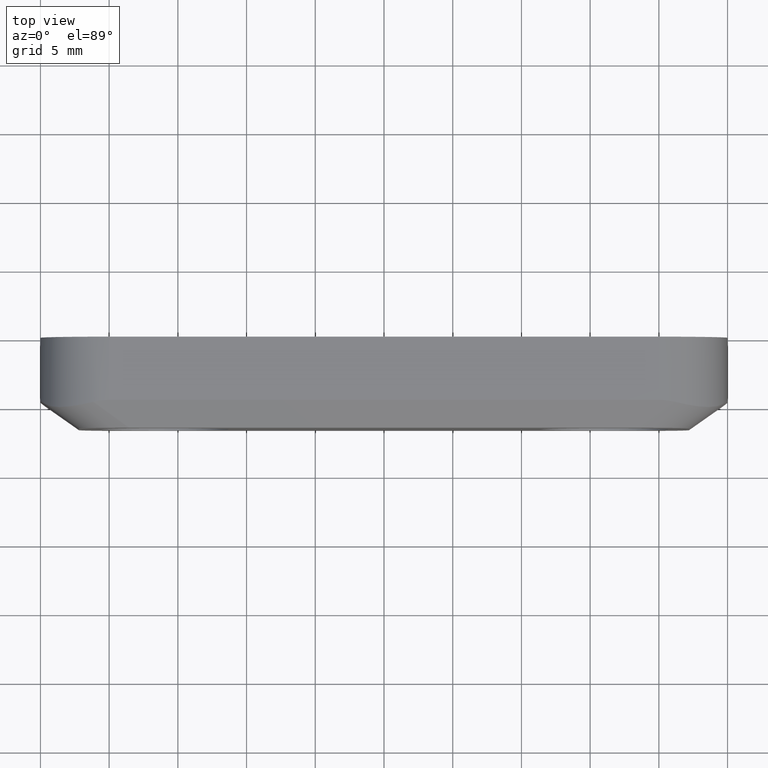
[diagram: clean part render]
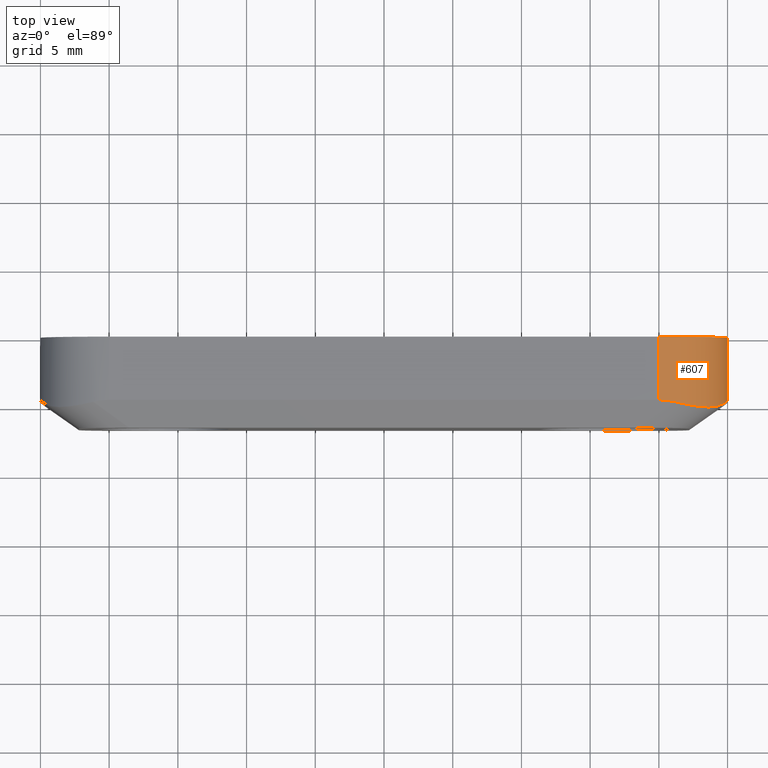
[diagram: same view with one face highlighted and labeled with its STEP entity id]
A machine part, top view. The second image highlights one B-rep face of the part: STEP entity #607.
In plain terms, the highlighted cylindrical surface (partial cylindrical patch) has radius 5 mm, axis along (0, 1, 0).
Its self-contained STEP definition (entity closure, byte-faithful):
#31 = DIRECTION ( 'NONE',  ( 0.0000000000000000000, 0.0000000000000000000, 1.000000000000000000 ) ) ;
#34 = VERTEX_POINT ( 'NONE', #223 ) ;
#37 = DIRECTION ( 'NONE',  ( 0.0000000000000000000, 1.000000000000000000, 0.0000000000000000000 ) ) ;
#49 = CARTESIAN_POINT ( 'NONE',  ( 23.14542361836299000, -5.080936582070707500, 7.392034514318929400 ) ) ;
#57 = CARTESIAN_POINT ( 'NONE',  ( 24.99999999998775000, -4.599999999999999600, 3.500000000001390000 ) ) ;
#62 = B_SPLINE_CURVE_WITH_KNOTS ( 'NONE', 3,
 ( #80, #947, #870, #942, #472, #641, #183, #49, #594, #268, #794, #562, #175, #504 ),
 .UNSPECIFIED., .F., .F.,
 ( 4, 2, 2, 2, 2, 2, 4 ),
 ( 0.0000000000000000000, 0.001244285988281708300, 0.001866428982422559400, 0.002488571976563410600, 0.003110714970704261400, 0.003732857964845113100, 0.004977143953126822100 ),
 .UNSPECIFIED. ) ;
#80 = CARTESIAN_POINT ( 'NONE',  ( 24.67731884921190000, -4.830486536268180600, 5.267113007900960900 ) ) ;
#142 = LINE ( 'NONE', #559, #347 ) ;
#153 = ORIENTED_EDGE ( 'NONE', *, *, #549, .F. ) ;
#162 = EDGE_CURVE ( 'NONE', #34, #299, #142, .T. ) ;
#175 = CARTESIAN_POINT ( 'NONE',  ( 21.55003786816701300, -4.829220552925865400, 8.270779447074293200 ) ) ;
#181 = CARTESIAN_POINT ( 'NONE',  ( 19.99999999998770100, -1000.000000000000000, 3.500000000000115000 ) ) ;
#183 = CARTESIAN_POINT ( 'NONE',  ( 23.45205393927591000, -5.094829759384635000, 7.122836733821660700 ) ) ;
#201 = VERTEX_POINT ( 'NONE', #513 ) ;
#214 = ORIENTED_EDGE ( 'NONE', *, *, #322, .F. ) ;
#223 = CARTESIAN_POINT ( 'NONE',  ( 24.99999999998775000, 0.0000000000000000000, 3.500000000001395300 ) ) ;
#231 = ORIENTED_EDGE ( 'NONE', *, *, #965, .F. ) ;
#253 = ORIENTED_EDGE ( 'NONE', *, *, #916, .F. ) ;
#268 = CARTESIAN_POINT ( 'NONE',  ( 22.64588629194556200, -5.028169182108968000, 7.747491752722281100 ) ) ;
#299 = VERTEX_POINT ( 'NONE', #400 ) ;
#312 =( BOUNDED_CURVE ( )  B_SPLINE_CURVE ( 3, ( #645, #348, #815, #974 ),
 .UNSPECIFIED., .F., .F. ) 
 B_SPLINE_CURVE_WITH_KNOTS ( ( 4, 4 ),
 ( 6.049602025277226700, 6.283185307179586200 ),
 .UNSPECIFIED. ) 
 CURVE ( )  GEOMETRIC_REPRESENTATION_ITEM ( )  RATIONAL_B_SPLINE_CURVE ( ( 1.000000000000000000, 0.9954584034475587600, 0.9954584034475587600, 1.000000000000000000 ) ) 
 REPRESENTATION_ITEM ( '' )  );
#322 = EDGE_CURVE ( 'NONE', #692, #570, #312, .T. ) ;
#347 = VECTOR ( 'NONE', #665, 1000.000000000000000 ) ;
#348 = CARTESIAN_POINT ( 'NONE',  ( 20.77772811688655000, -4.645467766029583800, 8.454532233970596200 ) ) ;
#386 = ORIENTED_EDGE ( 'NONE', *, *, #162, .F. ) ;
#394 = EDGE_LOOP ( 'NONE', ( #706, #214, #253, #153, #386, #231 ) ) ;
#400 = CARTESIAN_POINT ( 'NONE',  ( 24.99999999998775000, -4.599999999999999600, 3.500000000001390000 ) ) ;
#431 = CARTESIAN_POINT ( 'NONE',  ( 19.99999999998770100, 0.0000000000000000000, 3.500000000000115000 ) ) ;
#437 = CARTESIAN_POINT ( 'NONE',  ( 24.67731884921190000, -4.830486536268180600, 5.267113007900960900 ) ) ;
#441 = AXIS2_PLACEMENT_3D ( 'NONE', #431, #823, #31 ) ;
#472 = CARTESIAN_POINT ( 'NONE',  ( 23.87205244154782600, -5.081533563728908300, 6.670148654871363500 ) ) ;
#489 = CARTESIAN_POINT ( 'NONE',  ( 24.99999999998755100, -4.600000000000089400, 4.105342070641560400 ) ) ;
#504 = CARTESIAN_POINT ( 'NONE',  ( 21.15732486817434900, -4.735783809340249600, 8.364216190659910000 ) ) ;
#513 = CARTESIAN_POINT ( 'NONE',  ( 24.67731884921190000, -4.830486536268180600, 5.267113007900960900 ) ) ;
#549 = EDGE_CURVE ( 'NONE', #299, #201, #608, .T. ) ;
#551 = CARTESIAN_POINT ( 'NONE',  ( 19.99999999998770100, -4.599999999999999600, 8.500000000000110100 ) ) ;
#559 = CARTESIAN_POINT ( 'NONE',  ( 24.99999999998775000, -1000.000000000000000, 3.500000000001395300 ) ) ;
#561 = VECTOR ( 'NONE', #629, 1000.000000000000000 ) ;
#562 = CARTESIAN_POINT ( 'NONE',  ( 21.92648594498845300, -4.910103916622388100, 8.131793527950712500 ) ) ;
#570 = VERTEX_POINT ( 'NONE', #551 ) ;
#594 = CARTESIAN_POINT ( 'NONE',  ( 22.98422797473792300, -5.067433449815443000, 7.516999359488688800 ) ) ;
#607 = ADVANCED_FACE ( 'NONE', ( #671 ), #802, .T. ) ;
#608 =( BOUNDED_CURVE ( )  B_SPLINE_CURVE ( 3, ( #57, #489, #804, #437 ),
 .UNSPECIFIED., .F., .F. ) 
 B_SPLINE_CURVE_WITH_KNOTS ( ( 4, 4 ),
 ( -8.881784197001252300E-016, 0.3612273082640132800 ),
 .UNSPECIFIED. ) 
 CURVE ( )  GEOMETRIC_REPRESENTATION_ITEM ( )  RATIONAL_B_SPLINE_CURVE ( ( 1.000000000000000000, 0.9891557635425618500, 0.9891557635425618500, 1.000000000000000000 ) ) 
 REPRESENTATION_ITEM ( '' )  );
#629 = DIRECTION ( 'NONE',  ( 0.0000000000000000000, 1.000000000000000000, 0.0000000000000000000 ) ) ;
#641 = CARTESIAN_POINT ( 'NONE',  ( 23.59748993876162600, -5.095228166796665900, 6.978605862209009000 ) ) ;
#645 = CARTESIAN_POINT ( 'NONE',  ( 21.15732486817434900, -4.735783809340249600, 8.364216190659910000 ) ) ;
#665 = DIRECTION ( 'NONE',  ( -0.0000000000000000000, -1.000000000000000000, -0.0000000000000000000 ) ) ;
#671 = FACE_OUTER_BOUND ( 'NONE', #394, .T. ) ;
#692 = VERTEX_POINT ( 'NONE', #962 ) ;
#706 = ORIENTED_EDGE ( 'NONE', *, *, #741, .F. ) ;
#718 = CARTESIAN_POINT ( 'NONE',  ( 19.99999999998770100, -1000.000000000000000, 8.500000000000110100 ) ) ;
#741 = EDGE_CURVE ( 'NONE', #570, #838, #769, .T. ) ;
#762 = AXIS2_PLACEMENT_3D ( 'NONE', #181, #37, #975 ) ;
#769 = LINE ( 'NONE', #718, #561 ) ;
#794 = CARTESIAN_POINT ( 'NONE',  ( 22.46805116632663500, -5.002214370888922600, 7.853152683492348600 ) ) ;
#802 = CYLINDRICAL_SURFACE ( 'NONE', #762, 5.000000000000000000 ) ;
#804 = CARTESIAN_POINT ( 'NONE',  ( 24.89126041866343900, -4.677671129517198900, 4.700837432454216400 ) ) ;
#805 = CIRCLE ( 'NONE', #441, 5.000000000000000000 ) ;
#815 = CARTESIAN_POINT ( 'NONE',  ( 20.39019313327883200, -4.600000000000064500, 8.500000000000115500 ) ) ;
#823 = DIRECTION ( 'NONE',  ( 0.0000000000000000000, 1.000000000000000000, 0.0000000000000000000 ) ) ;
#838 = VERTEX_POINT ( 'NONE', #978 ) ;
#870 = CARTESIAN_POINT ( 'NONE',  ( 24.34675513785089500, -5.003603934309365900, 6.004323844481691100 ) ) ;
#916 = EDGE_CURVE ( 'NONE', #201, #692, #62, .T. ) ;
#942 = CARTESIAN_POINT ( 'NONE',  ( 23.99975946497671600, -5.067390786050785000, 6.507225259084577800 ) ) ;
#947 = CARTESIAN_POINT ( 'NONE',  ( 24.53514422779969800, -4.932039837276826200, 5.643430783639907100 ) ) ;
#962 = CARTESIAN_POINT ( 'NONE',  ( 21.15732486817434900, -4.735783809340249600, 8.364216190659910000 ) ) ;
#965 = EDGE_CURVE ( 'NONE', #838, #34, #805, .T. ) ;
#974 = CARTESIAN_POINT ( 'NONE',  ( 19.99999999998770100, -4.599999999999999600, 8.500000000000110100 ) ) ;
#975 = DIRECTION ( 'NONE',  ( 0.0000000000000000000, 0.0000000000000000000, 1.000000000000000000 ) ) ;
#978 = CARTESIAN_POINT ( 'NONE',  ( 19.99999999998770100, 0.0000000000000000000, 8.500000000000110100 ) ) ;